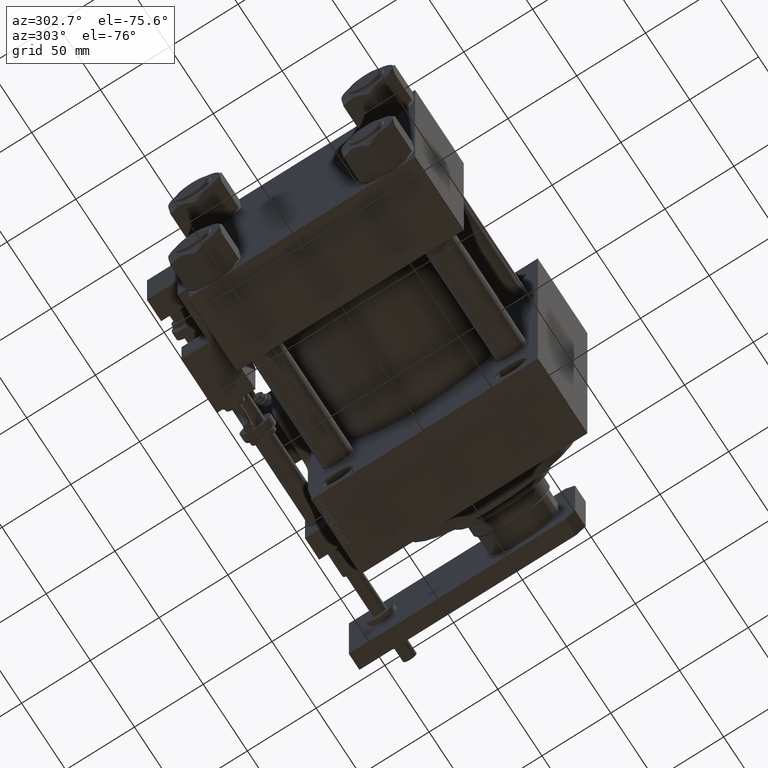
[diagram: clean part render]
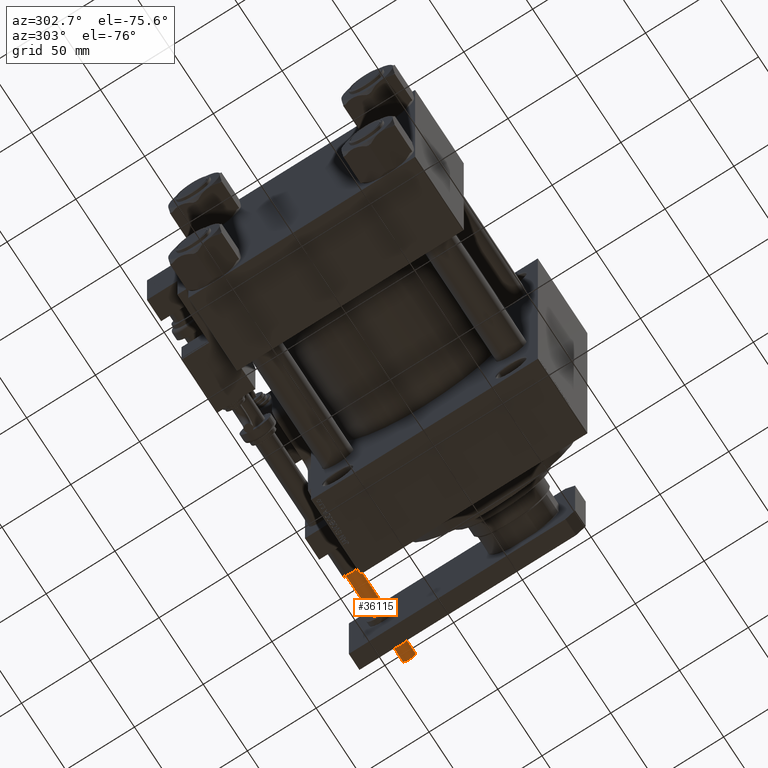
[diagram: same view with one face highlighted and labeled with its STEP entity id]
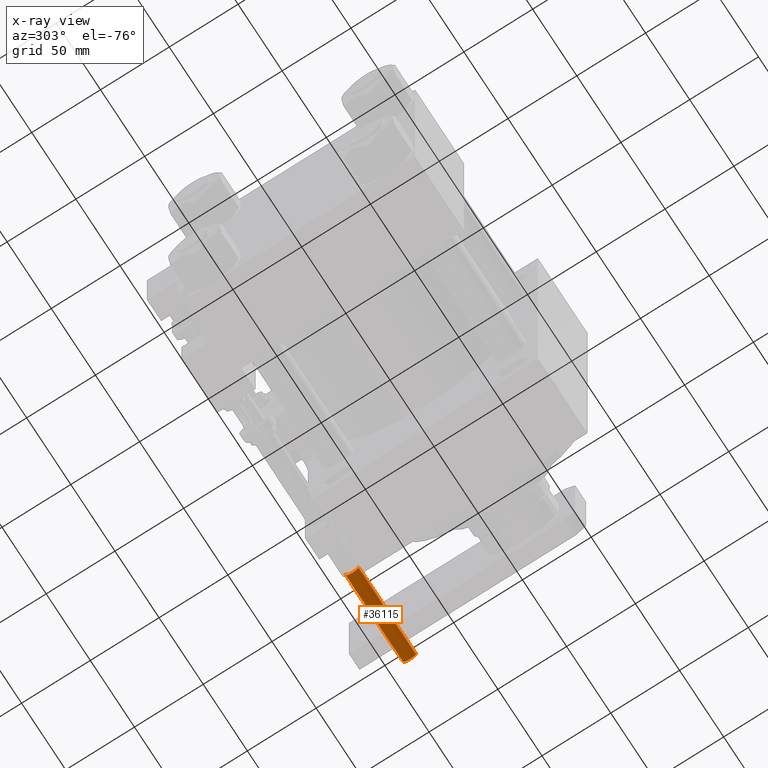
[diagram: x-ray of the same camera — body ghosted, the highlighted face saturated]
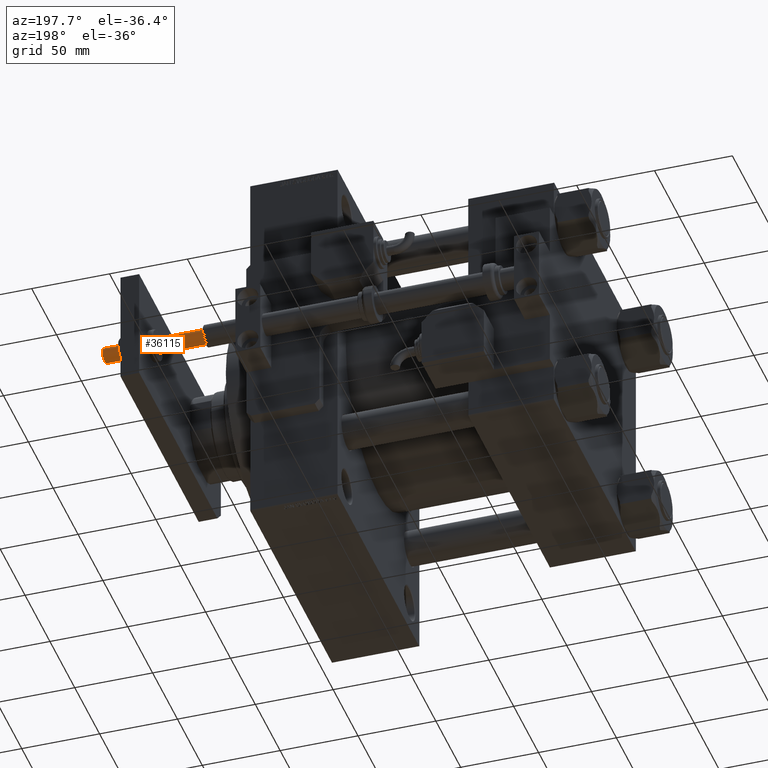
[diagram: same view with one face highlighted and labeled with its STEP entity id]
A machine part, auxiliary view. The second image highlights one B-rep face of the part: STEP entity #36115.
The next image is the same camera in x-ray: the body ghosted, the highlighted face saturated — about 1% of this face is hidden behind the body in this view.
A second angle (auxiliary view) of the same face is appended — the face is thin or edge-on in the first view.
In plain terms, the highlighted cylindrical surface (edge-blend (fillet) strip) has radius 5 mm, axis along (-1, 0, 0).
Its self-contained STEP definition (entity closure, byte-faithful):
#368 = VERTEX_POINT ( 'NONE', #28666 ) ;
#2698 = VECTOR ( 'NONE', #2977, 1000.000000000000000 ) ;
#2958 = DIRECTION ( 'NONE',  ( 0.000000000000000000, 0.000000000000000000, 1.000000000000000000 ) ) ;
#2977 = DIRECTION ( 'NONE',  ( -0.000000000000000000, -0.000000000000000000, 1.000000000000000000 ) ) ;
#6206 = AXIS2_PLACEMENT_3D ( 'NONE', #11405, #27874, #11127 ) ;
#11127 = DIRECTION ( 'NONE',  ( -1.000000000000000000, 0.000000000000000000, 0.000000000000000000 ) ) ;
#11405 = CARTESIAN_POINT ( 'NONE',  ( 0.000000000000000000, 0.000000000000000000, 0.000000000000000000 ) ) ;
#11643 = CARTESIAN_POINT ( 'NONE',  ( 5.000000000000000000, 0.000000000000000000, 0.000000000000000000 ) ) ;
#14569 = LINE ( 'NONE', #43476, #2698 ) ;
#15631 = DIRECTION ( 'NONE',  ( -1.000000000000000000, 0.000000000000000000, 0.000000000000000000 ) ) ;
#16078 = EDGE_CURVE ( 'NONE', #53288, #29005, #14569, .T. ) ;
#17777 = EDGE_CURVE ( 'NONE', #43556, #29005, #29470, .T. ) ;
#19166 = CARTESIAN_POINT ( 'NONE',  ( -5.000000000000000000, 6.123233995736766282E-16, 0.000000000000000000 ) ) ;
#19269 = ORIENTED_EDGE ( 'NONE', *, *, #28128, .T. ) ;
#19628 = AXIS2_PLACEMENT_3D ( 'NONE', #44261, #2958, #15631 ) ;
#20904 = CARTESIAN_POINT ( 'NONE',  ( 0.000000000000000000, 0.000000000000000000, -65.50000000000000000 ) ) ;
#23823 = CIRCLE ( 'NONE', #19628, 5.000000000000000000 ) ;
#25216 = DIRECTION ( 'NONE',  ( 1.000000000000000000, 0.000000000000000000, 0.000000000000000000 ) ) ;
#27874 = DIRECTION ( 'NONE',  ( 0.000000000000000000, 0.000000000000000000, -1.000000000000000000 ) ) ;
#28128 = EDGE_CURVE ( 'NONE', #53288, #368, #23823, .T. ) ;
#28454 = CYLINDRICAL_SURFACE ( 'NONE', #36192, 5.000000000000000000 ) ;
#28666 = CARTESIAN_POINT ( 'NONE',  ( -5.000000000000000000, 6.123233995736766282E-16, -64.99999999999998579 ) ) ;
#28724 = FACE_OUTER_BOUND ( 'NONE', #43889, .T. ) ;
#29005 = VERTEX_POINT ( 'NONE', #11643 ) ;
#29470 = CIRCLE ( 'NONE', #6206, 5.000000000000000000 ) ;
#29650 = DIRECTION ( 'NONE',  ( -0.000000000000000000, -0.000000000000000000, 1.000000000000000000 ) ) ;
#33201 = ORIENTED_EDGE ( 'NONE', *, *, #16078, .F. ) ;
#34766 = LINE ( 'NONE', #42622, #40787 ) ;
#36115 = ADVANCED_FACE ( 'NONE', ( #28724 ), #28454, .T. ) ;
#36192 = AXIS2_PLACEMENT_3D ( 'NONE', #20904, #44944, #25216 ) ;
#40787 = VECTOR ( 'NONE', #29650, 1000.000000000000000 ) ;
#42622 = CARTESIAN_POINT ( 'NONE',  ( -5.000000000000000000, 6.123233995736766282E-16, -65.50000000000000000 ) ) ;
#43476 = CARTESIAN_POINT ( 'NONE',  ( 5.000000000000000000, 0.000000000000000000, -65.50000000000000000 ) ) ;
#43556 = VERTEX_POINT ( 'NONE', #19166 ) ;
#43889 = EDGE_LOOP ( 'NONE', ( #19269, #44757, #51069, #33201 ) ) ;
#44261 = CARTESIAN_POINT ( 'NONE',  ( 0.000000000000000000, 0.000000000000000000, -64.99999999999998579 ) ) ;
#44757 = ORIENTED_EDGE ( 'NONE', *, *, #45834, .T. ) ;
#44944 = DIRECTION ( 'NONE',  ( -0.000000000000000000, -0.000000000000000000, 1.000000000000000000 ) ) ;
#45834 = EDGE_CURVE ( 'NONE', #368, #43556, #34766, .T. ) ;
#51069 = ORIENTED_EDGE ( 'NONE', *, *, #17777, .T. ) ;
#52775 = CARTESIAN_POINT ( 'NONE',  ( 5.000000000000000000, 0.000000000000000000, -64.99999999999998579 ) ) ;
#53288 = VERTEX_POINT ( 'NONE', #52775 ) ;